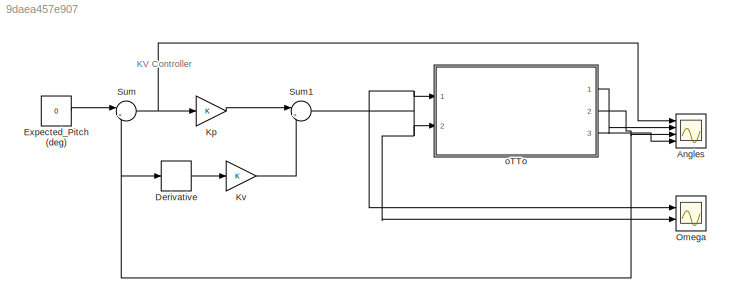
MODEL slx_9daea457e907
KIND model
CONFIG AbsTol = auto
CONFIG EnableMultiTasking = off
CONFIG FixedStep = auto
CONFIG MaxStep = auto
CONFIG MinStep = auto
CONFIG RelTol = 1e-3
CONFIG SampleTimeConstraint = Unconstrained
CONFIG SolverName = FixedStepAuto
CONFIG StartTime = 0.0
CONFIG StopTime = inf
BLOCK [Scope] Angles
  Floating = off
  NumInputPorts = 4
  Ports = [4]
  ScopeSpecificationString = Simulink.scopes.TimeScopeBlockCfg('CurrentConfiguration', extmgr.ConfigurationSet(extmgr.Configuration('Core','General UI',true),extmgr.Configuration('Core','Source UI',true),extmgr.Configuration('Sources','WiredSimulink',true),extmgr.Configuration('Visuals','Time Domain',true,'SerializedDisplays',{struct('MinYLimReal','-71.70061','MaxYLimReal','407.96606','YLabelReal','','MinYLimMag','0.00000','M...<+1894ch>
BLOCK [Derivative] Derivative
BLOCK [Constant] Expected_Pitch (deg)
  Value = 0
BLOCK [Gain] Kp
BLOCK [Gain] Kv
BLOCK [Scope] Omega
  Floating = off
  NumInputPorts = 2
  Ports = [2]
  ScopeSpecificationString = Simulink.scopes.TimeScopeBlockCfg('CurrentConfiguration', extmgr.ConfigurationSet(extmgr.Configuration('Core','General UI',true),extmgr.Configuration('Core','Source UI',true),extmgr.Configuration('Sources','WiredSimulink',true,'DataLoggingVariableName','ScopeData1'),extmgr.Configuration('Visuals','Time Domain',true,'SerializedDisplays',{struct('MinYLimReal','-360','MaxYLimReal','360','YLabelReal',...<+1738ch>
BLOCK [Sum] Sum
  Inputs = |+-
  Ports = [2, 1]
BLOCK [Sum] Sum1
  Inputs = |+-
  Ports = [2, 1]
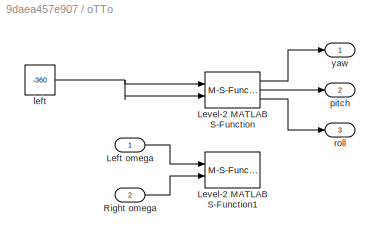
BLOCK [SubSystem] oTTo
  Ports = [2, 3]
  RequestExecContextInheritance = off
BLOCK [Inport] oTTo/Left omega
BLOCK [M-S-Function] oTTo/Level-2 MATLAB S-Function
  FunctionName = oTTo_recv
  Parameters = "COM4", 115200,uart
  Ports = [2, 3]
BLOCK [M-S-Function] oTTo/Level-2 MATLAB S-Function1
  FunctionName = oTTo_send
  Parameters = "COM4", 115200,uart
  Ports = [2]
BLOCK [Inport] oTTo/Right omega
  Port = 2
BLOCK [Constant] oTTo/left
  Value = -360
BLOCK [Outport] oTTo/pitch
  Port = 2
BLOCK [Outport] oTTo/roll
  Port = 3
BLOCK [Outport] oTTo/yaw
ANNOTATION (root): KV Controller
LINE Derivative:1 -> Kv:1
LINE Expected_Pitch (deg):1 -> Sum:1
LINE Kp:1 -> Sum1:1
LINE Kv:1 -> Sum1:2
NET Sum1:1 -> Omega:1, Omega:2, oTTo:1, oTTo:2
NET Sum:1 -> Angles:1, Kp:1
LINE oTTo/Left omega:1 -> oTTo/Level-2 MATLAB S-Function1:1
LINE oTTo/Level-2 MATLAB S-Function:1 -> oTTo/yaw:1
LINE oTTo/Level-2 MATLAB S-Function:2 -> oTTo/pitch:1
LINE oTTo/Level-2 MATLAB S-Function:3 -> oTTo/roll:1
LINE oTTo/Right omega:1 -> oTTo/Level-2 MATLAB S-Function1:2
NET oTTo/left:1 -> oTTo/Level-2 MATLAB S-Function:1, oTTo/Level-2 MATLAB S-Function:2
LINE oTTo:1 -> Angles:2
NET oTTo:2 -> Angles:3, Derivative:1, Sum:2
LINE oTTo:3 -> Angles:4
note: NET lines group one-source signal fan-out (src -> all destinations, sorted); 1:1 wires keep LINE
